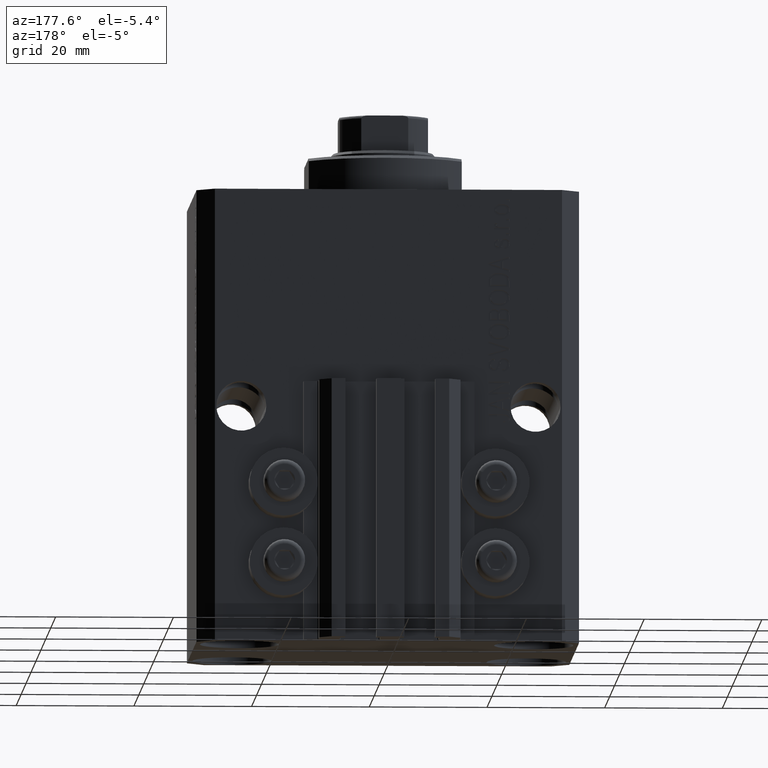
[diagram: clean part render]
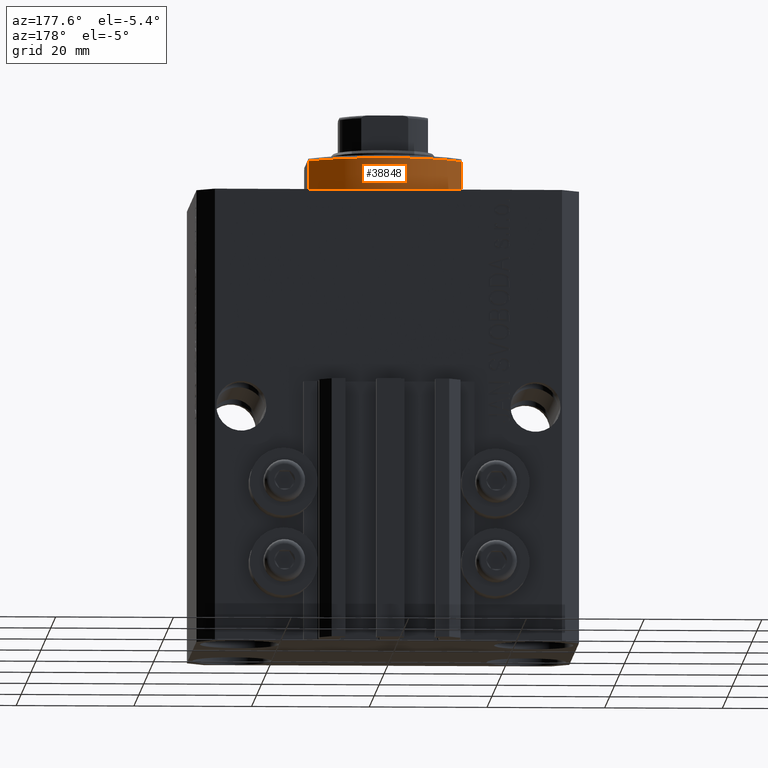
[diagram: same view with one face highlighted and labeled with its STEP entity id]
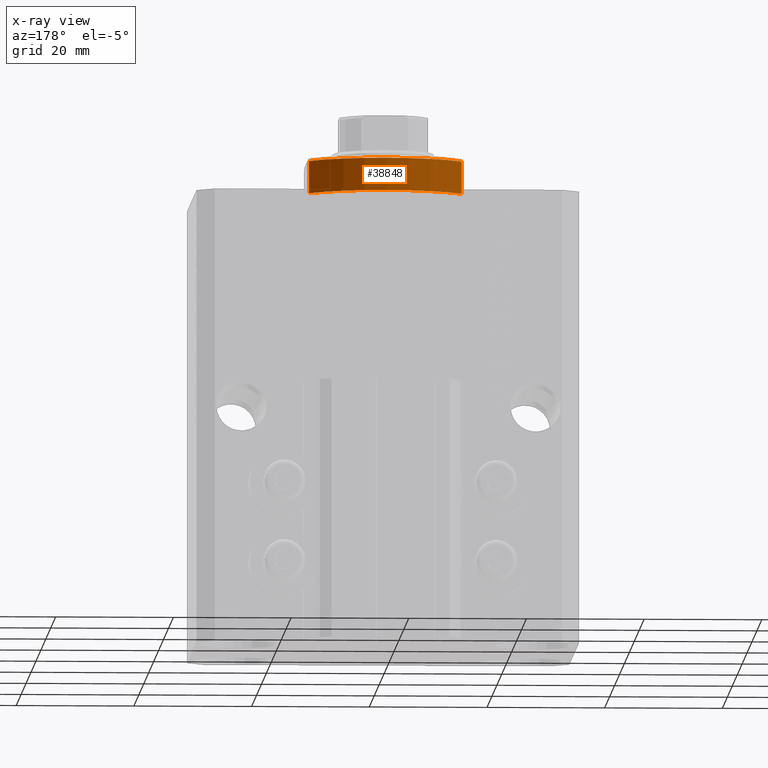
[diagram: x-ray of the same camera — body ghosted, the highlighted face saturated]
A machine part, auxiliary view. The second image highlights one B-rep face of the part: STEP entity #38848.
The next image is the same camera in x-ray: the body ghosted, the highlighted face saturated — about 0% of this face is hidden behind the body in this view.
In plain terms, the highlighted cylindrical surface (partial cylindrical patch) has radius 16 mm, axis along (0, 0, -1).
Its self-contained STEP definition (entity closure, byte-faithful):
#142 = DIRECTION ( 'NONE',  ( 1.000000000000000000, -8.881784197001252323E-16, 0.000000000000000000 ) ) ;
#171 = CARTESIAN_POINT ( 'NONE',  ( 0.000000000000000000, 0.000000000000000000, -6.500000000000000000 ) ) ;
#562 = ORIENTED_EDGE ( 'NONE', *, *, #24302, .F. ) ;
#1198 = CARTESIAN_POINT ( 'NONE',  ( 0.000000000000000000, 0.000000000000000000, -6.000000000000023981 ) ) ;
#1243 = CARTESIAN_POINT ( 'NONE',  ( -13.00000000000000000, 9.327379053088813876, -6.500000000000000000 ) ) ;
#1294 = EDGE_CURVE ( 'NONE', #27910, #29971, #41072, .T. ) ;
#2355 = VERTEX_POINT ( 'NONE', #8184 ) ;
#3610 = CARTESIAN_POINT ( 'NONE',  ( -13.00000000000000000, 9.327379053088916905, -6.000000000000014211 ) ) ;
#3986 = DIRECTION ( 'NONE',  ( 1.000000000000000000, 0.000000000000000000, 0.000000000000000000 ) ) ;
#4315 = AXIS2_PLACEMENT_3D ( 'NONE', #1198, #30759, #23376 ) ;
#4569 = EDGE_CURVE ( 'NONE', #17107, #27910, #8896, .T. ) ;
#5515 = LINE ( 'NONE', #20063, #21979 ) ;
#6598 = AXIS2_PLACEMENT_3D ( 'NONE', #20973, #46260, #142 ) ;
#6644 = FACE_OUTER_BOUND ( 'NONE', #13338, .T. ) ;
#8184 = CARTESIAN_POINT ( 'NONE',  ( 13.00000000000000000, 9.327379053088815652, -0.4999999999999995559 ) ) ;
#8264 = CARTESIAN_POINT ( 'NONE',  ( 13.00000000000000000, 9.327379053088916905, -6.000000000000014211 ) ) ;
#8896 = CIRCLE ( 'NONE', #4315, 16.00000000000000000 ) ;
#9658 = ORIENTED_EDGE ( 'NONE', *, *, #4569, .T. ) ;
#11065 = VECTOR ( 'NONE', #33194, 1000.000000000000000 ) ;
#13338 = EDGE_LOOP ( 'NONE', ( #562, #9658, #21383, #46125 ) ) ;
#14278 = DIRECTION ( 'NONE',  ( -0.000000000000000000, -0.000000000000000000, 1.000000000000000000 ) ) ;
#17107 = VERTEX_POINT ( 'NONE', #8264 ) ;
#18959 = EDGE_CURVE ( 'NONE', #29971, #2355, #25607, .T. ) ;
#20063 = CARTESIAN_POINT ( 'NONE',  ( 13.00000000000000000, 9.327379053088813876, -6.500000000000000000 ) ) ;
#20973 = CARTESIAN_POINT ( 'NONE',  ( 0.000000000000000000, 0.000000000000000000, -0.4999999999999995559 ) ) ;
#21383 = ORIENTED_EDGE ( 'NONE', *, *, #1294, .T. ) ;
#21979 = VECTOR ( 'NONE', #34586, 1000.000000000000000 ) ;
#23376 = DIRECTION ( 'NONE',  ( -1.000000000000000000, 0.000000000000000000, 0.000000000000000000 ) ) ;
#24302 = EDGE_CURVE ( 'NONE', #17107, #2355, #5515, .T. ) ;
#25607 = CIRCLE ( 'NONE', #6598, 16.00000000000000000 ) ;
#27910 = VERTEX_POINT ( 'NONE', #3610 ) ;
#29971 = VERTEX_POINT ( 'NONE', #45296 ) ;
#30759 = DIRECTION ( 'NONE',  ( 0.000000000000000000, 0.000000000000000000, 1.000000000000000000 ) ) ;
#33049 = AXIS2_PLACEMENT_3D ( 'NONE', #171, #14278, #3986 ) ;
#33194 = DIRECTION ( 'NONE',  ( -0.000000000000000000, -0.000000000000000000, 1.000000000000000000 ) ) ;
#34586 = DIRECTION ( 'NONE',  ( -0.000000000000000000, -0.000000000000000000, 1.000000000000000000 ) ) ;
#35945 = CYLINDRICAL_SURFACE ( 'NONE', #33049, 16.00000000000000000 ) ;
#38848 = ADVANCED_FACE ( 'NONE', ( #6644 ), #35945, .T. ) ;
#41072 = LINE ( 'NONE', #1243, #11065 ) ;
#45296 = CARTESIAN_POINT ( 'NONE',  ( -13.00000000000000000, 9.327379053088815652, -0.4999999999999995559 ) ) ;
#46125 = ORIENTED_EDGE ( 'NONE', *, *, #18959, .T. ) ;
#46260 = DIRECTION ( 'NONE',  ( -0.000000000000000000, -0.000000000000000000, -1.000000000000000000 ) ) ;